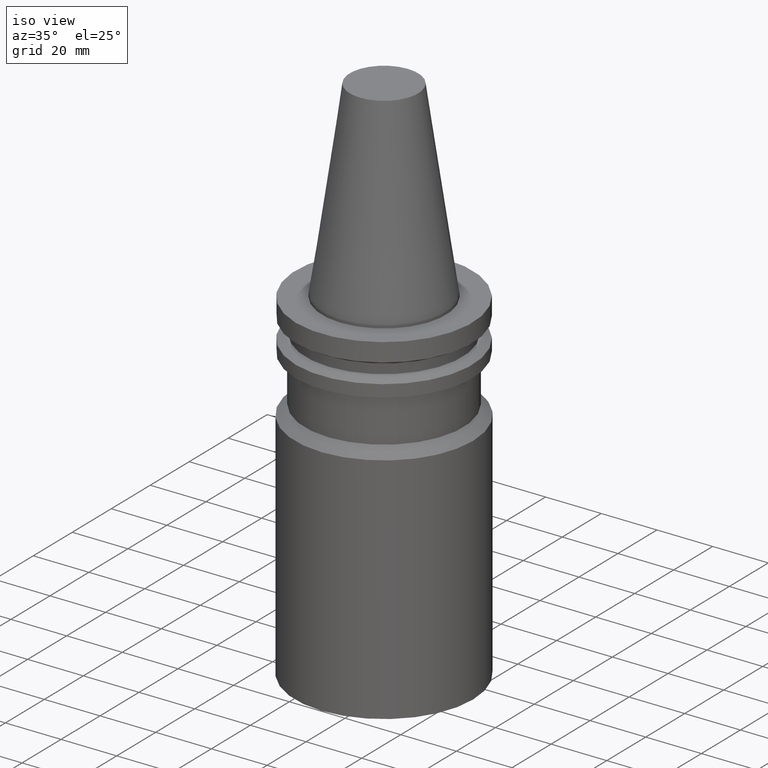
[diagram: clean part render]
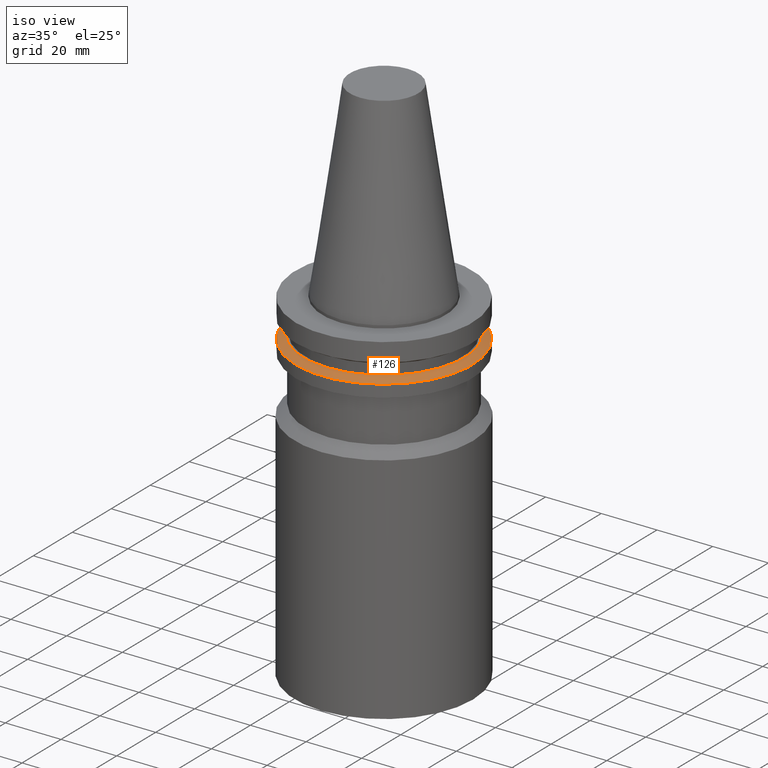
[diagram: same view with one face highlighted and labeled with its STEP entity id]
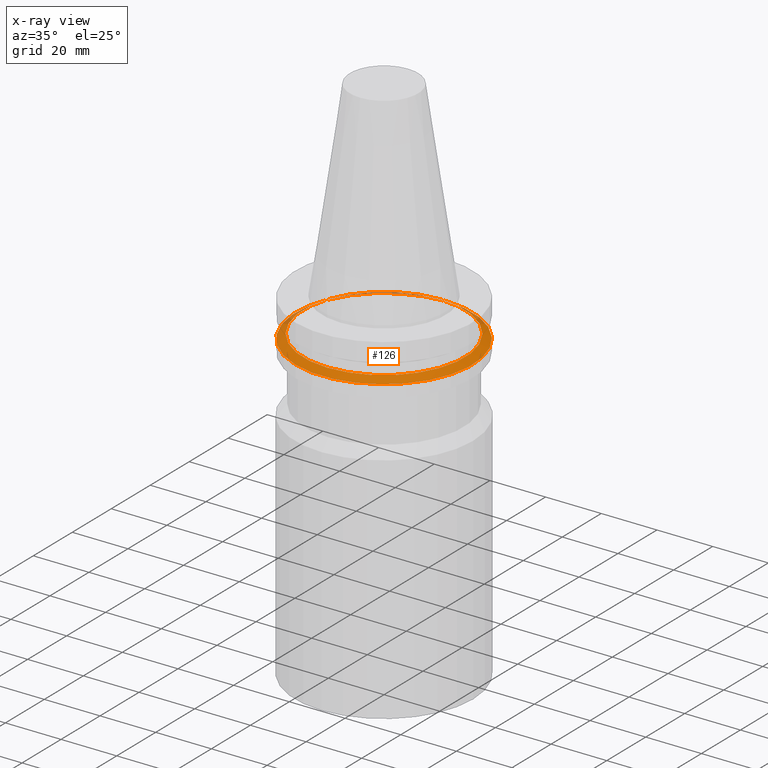
[diagram: x-ray of the same camera — body ghosted, the highlighted face saturated]
A machine part, iso view. The second image highlights one B-rep face of the part: STEP entity #126.
The next image is the same camera in x-ray: the body ghosted, the highlighted face saturated — about 9% of this face is hidden behind the body in this view.
In plain terms, the highlighted conical surface has half-angle 60 deg.
Its self-contained STEP definition (entity closure, byte-faithful):
#76=EDGE_CURVE('Unnamed[1]',#189,#189,#190,.T.);
#110=EDGE_CURVE('Unnamed[1]',#243,#243,#244,.T.);
#126=ADVANCED_FACE('Unnamed[1]',(#267,#268),#269,.T.);
#189=VERTEX_POINT('',#337);
#190=CIRCLE('',#338,28.95591319);
#243=VERTEX_POINT('',#405);
#244=CIRCLE('',#406,31.75);
#267=FACE_BOUND('',#435,.T.);
#268=FACE_BOUND('',#436,.T.);
#269=CONICAL_SURFACE('',#437,30.352956595,1.04719755170464);
#337=CARTESIAN_POINT('',(7.98469713044073E-016,28.95591319,-13.04));
#338=AXIS2_PLACEMENT_3D('',#500,#501,#502);
#405=CARTESIAN_POINT('',(8.97247689112643E-016,31.75,-14.65316677));
#406=AXIS2_PLACEMENT_3D('',#560,#561,#562);
#435=EDGE_LOOP('',(#587));
#436=EDGE_LOOP('',(#588));
#437=AXIS2_PLACEMENT_3D('',#589,#590,#591);
#500=CARTESIAN_POINT('',(7.98469713044074E-016,1.59693942608815E-015,-13.04));
#501=DIRECTION('',(6.12323399573677E-017,1.22464679914781E-016,-1.0));
#502=DIRECTION('',(-1.23259516440793E-032,1.0,1.22464679914781E-016));
#560=CARTESIAN_POINT('',(8.97247689112643E-016,1.79449537822529E-015,-14.65316677));
#561=DIRECTION('',(6.12323399573677E-017,1.22464679914714E-016,-1.0));
#562=DIRECTION('',(-1.23259516440783E-032,1.0,1.22464679914714E-016));
#587=ORIENTED_EDGE('',*,*,#110,.F.);
#588=ORIENTED_EDGE('',*,*,#76,.T.);
#589=CARTESIAN_POINT('',(8.47858701078359E-016,1.69571740215672E-015,-13.846583385));
#590=DIRECTION('',(6.12323399573677E-017,1.22464679914693E-016,-1.0));
#591=DIRECTION('',(-1.23259516440788E-032,1.0,1.22464679914693E-016));